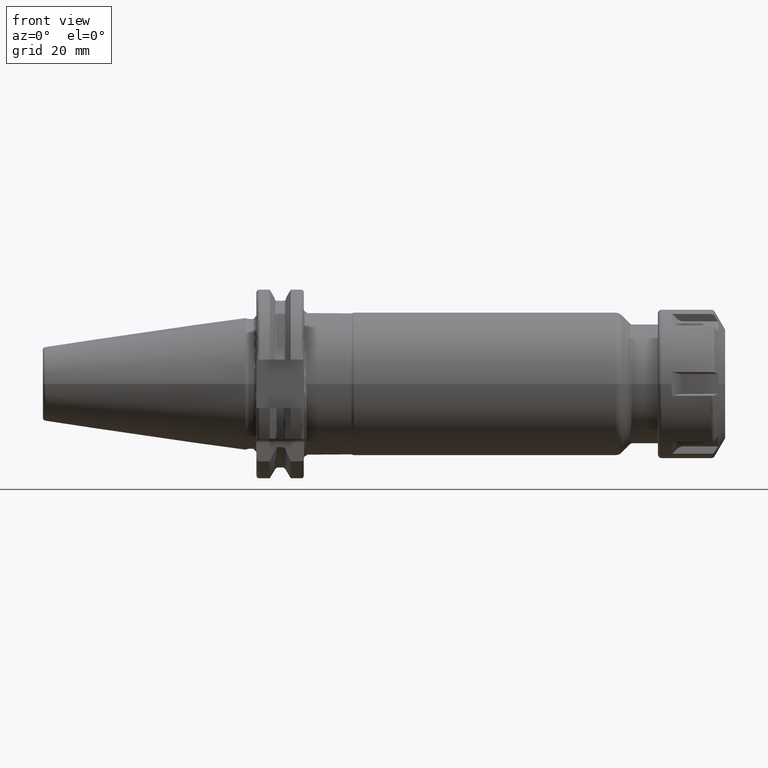
[diagram: clean part render]
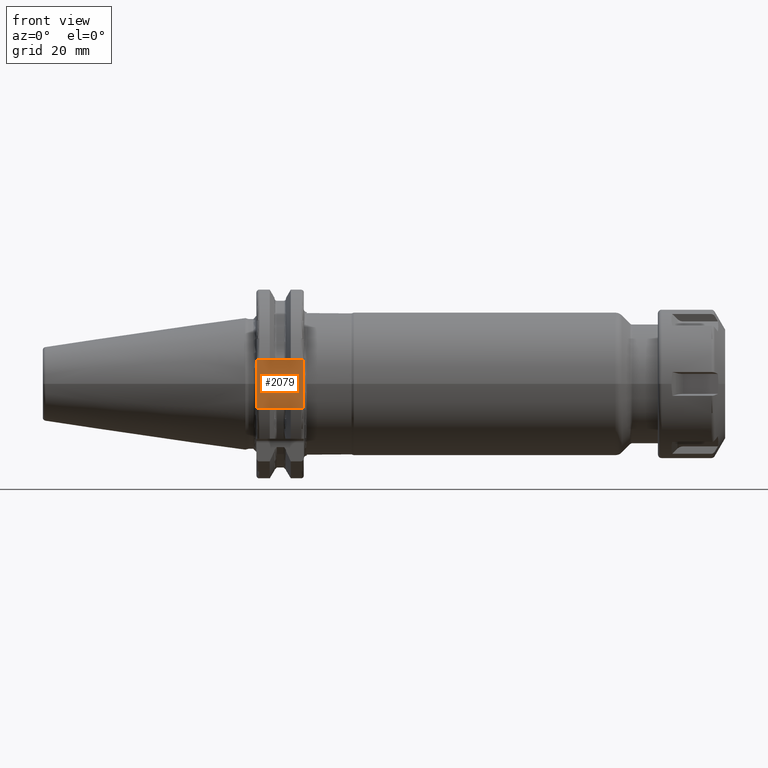
[diagram: same view with one face highlighted and labeled with its STEP entity id]
A machine part, front view. The second image highlights one B-rep face of the part: STEP entity #2079.
In plain terms, the highlighted planar face has unit normal (0, 1, 0).
Its self-contained STEP definition (entity closure, byte-faithful):
#206=DIRECTION('',(0.E0,0.E0,1.E0));
#207=VECTOR('',#206,1.62E1);
#208=CARTESIAN_POINT('',(3.2E0,-2.485E1,-8.1E0));
#209=LINE('',#208,#207);
#244=DIRECTION('',(0.E0,2.697269363904E-6,9.999999999964E-1));
#245=VECTOR('',#244,5.367600531663E0);
#246=CARTESIAN_POINT('',(1.905E1,-2.485E1,-8.1E0));
#247=LINE('',#246,#245);
#253=DIRECTION('',(0.E0,-7.337886783033E-7,9.999999999997E-1));
#254=VECTOR('',#253,5.367189378602E0);
#255=CARTESIAN_POINT('',(1.905E1,-2.484999606162E1,2.732810621399E0));
#256=LINE('',#255,#254);
#275=CARTESIAN_POINT('',(1.905E1,-2.484998552214E1,-2.732399468357E0));
#276=CARTESIAN_POINT('',(1.905E1,-2.484998552214E1,-2.121368101068E0));
#277=CARTESIAN_POINT('',(1.906192340671E1,-2.485000623122E1,
-9.050834729974E-1));
#278=CARTESIAN_POINT('',(1.906192323757E1,-2.484999990753E1,9.049631554179E-1));
#279=CARTESIAN_POINT('',(1.905E1,-2.484999606162E1,2.121786425854E0));
#280=CARTESIAN_POINT('',(1.905E1,-2.484999606162E1,2.732810621399E0));
#292=DIRECTION('',(-1.E0,0.E0,0.E0));
#293=VECTOR('',#292,1.585E1);
#294=CARTESIAN_POINT('',(1.905E1,-2.485E1,-8.1E0));
#295=LINE('',#294,#293);
#505=DIRECTION('',(-1.E0,0.E0,0.E0));
#506=VECTOR('',#505,1.585E1);
#507=CARTESIAN_POINT('',(1.905E1,-2.485E1,8.1E0));
#508=LINE('',#507,#506);
#1504=CARTESIAN_POINT('',(1.905E1,-2.485E1,-8.1E0));
#1506=VERTEX_POINT('',#1504);
#1508=CARTESIAN_POINT('',(1.905E1,-2.485E1,8.1E0));
#1510=VERTEX_POINT('',#1508);
#1532=CARTESIAN_POINT('',(3.2E0,-2.485E1,-8.1E0));
#1534=VERTEX_POINT('',#1532);
#1535=CARTESIAN_POINT('',(3.2E0,-2.485E1,8.1E0));
#1536=VERTEX_POINT('',#1535);
#1578=CARTESIAN_POINT('',(1.905E1,-2.485072776472E1,-2.727880049344E0));
#1580=VERTEX_POINT('',#1578);
#1583=CARTESIAN_POINT('',(1.905E1,-2.485056276750E1,2.729382739474E0));
#1585=VERTEX_POINT('',#1583);
#2064=CARTESIAN_POINT('',(1.905E1,-2.485E1,-8.1E0));
#2065=DIRECTION('',(0.E0,1.E0,0.E0));
#2066=DIRECTION('',(0.E0,0.E0,1.E0));
#2067=AXIS2_PLACEMENT_3D('',#2064,#2065,#2066);
#2068=PLANE('',#2067);
#2069=ORIENTED_EDGE('',*,*,#2039,.F.);
#2070=ORIENTED_EDGE('',*,*,#2057,.F.);
#2071=ORIENTED_EDGE('',*,*,#2027,.F.);
#2073=ORIENTED_EDGE('',*,*,#2072,.T.);
#2074=ORIENTED_EDGE('',*,*,#1964,.T.);
#2076=ORIENTED_EDGE('',*,*,#2075,.F.);
#2077=EDGE_LOOP('',(#2069,#2070,#2071,#2073,#2074,#2076));
#2078=FACE_OUTER_BOUND('',#2077,.F.);
#2079=ADVANCED_FACE('',(#2078),#2068,.F.);
#281=B_SPLINE_CURVE_WITH_KNOTS('',3,(#275,#276,#277,#278,#279,#280),
.UNSPECIFIED.,.F.,.F.,(4,1,1,4),(0.E0,3.333333333333E-1,6.666666666667E-1,1.E0),
.UNSPECIFIED.);
#1964=EDGE_CURVE('',#1534,#1536,#209,.T.);
#2027=EDGE_CURVE('',#1506,#1580,#247,.T.);
#2039=EDGE_CURVE('',#1585,#1510,#256,.T.);
#2057=EDGE_CURVE('',#1580,#1585,#281,.T.);
#2072=EDGE_CURVE('',#1506,#1534,#295,.T.);
#2075=EDGE_CURVE('',#1510,#1536,#508,.T.);